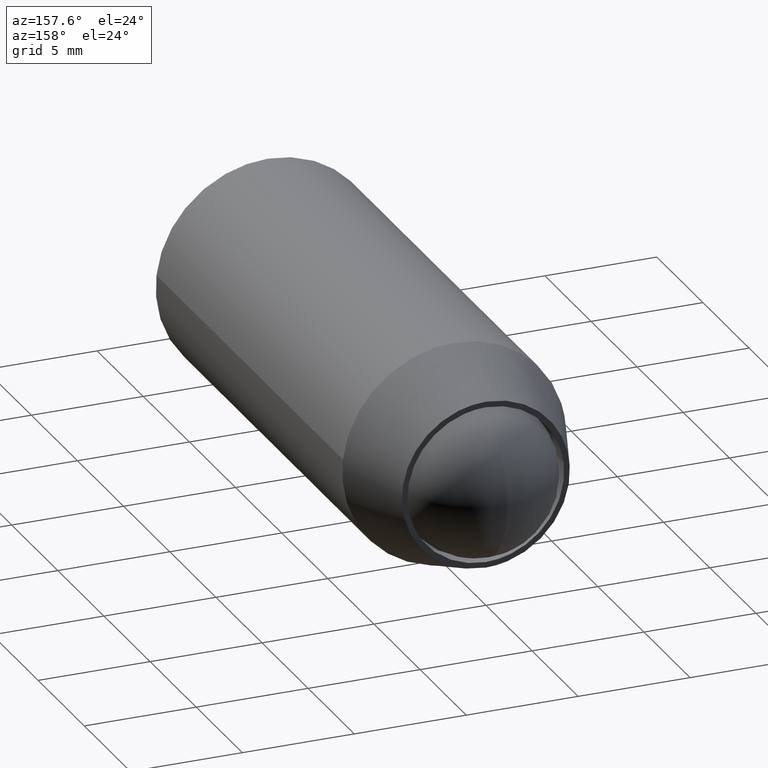
[diagram: clean part render]
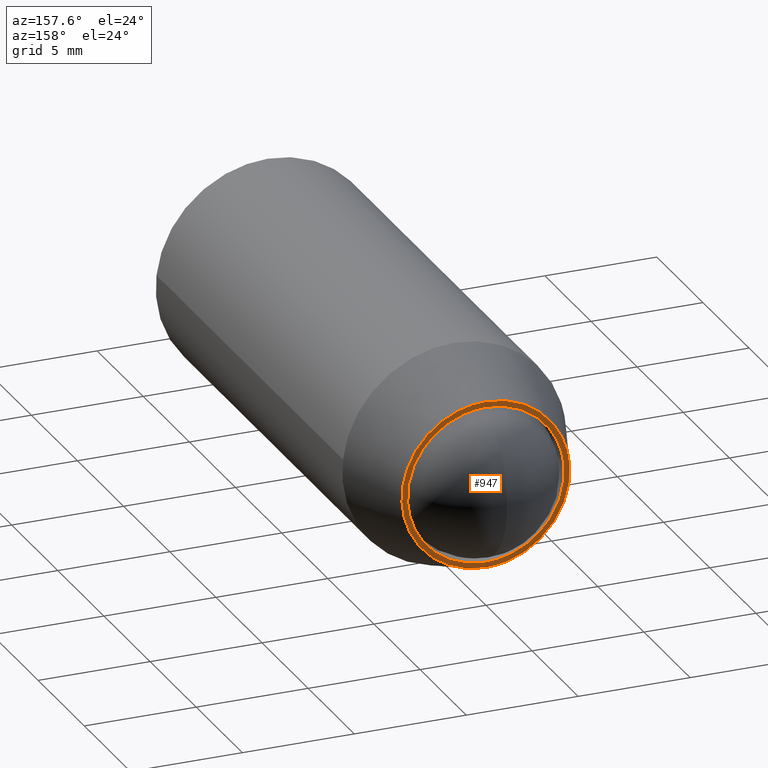
[diagram: same view with one face highlighted and labeled with its STEP entity id]
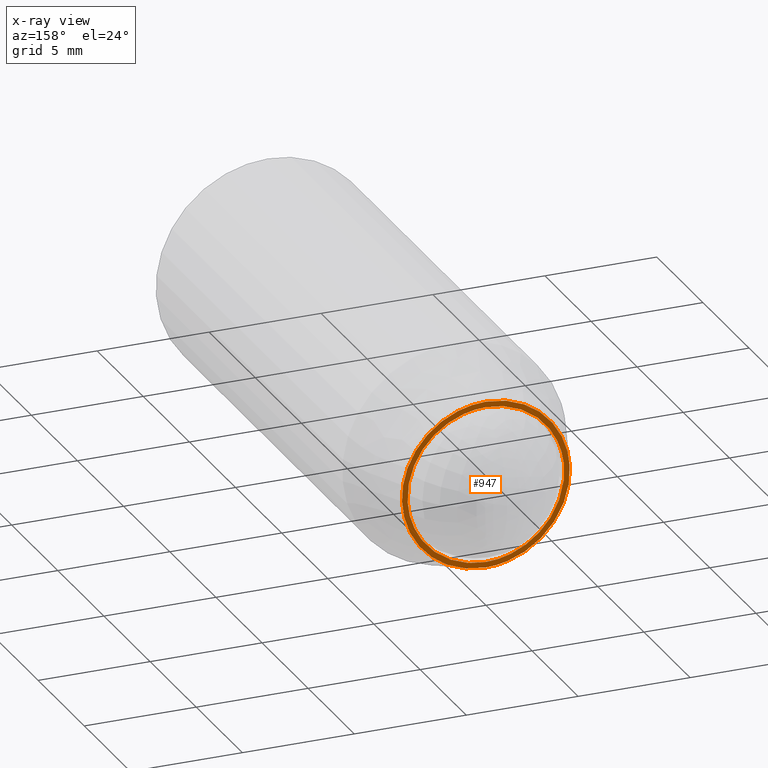
[diagram: x-ray of the same camera — body ghosted, the highlighted face saturated]
A machine part, auxiliary view. The second image highlights one B-rep face of the part: STEP entity #947.
The next image is the same camera in x-ray: the body ghosted, the highlighted face saturated — about 0% of this face is hidden behind the body in this view.
In plain terms, the highlighted face is a freeform B-spline surface patch.
Its self-contained STEP definition (entity closure, byte-faithful):
#100=CARTESIAN_POINT('',(3.493472095733746,-1.110223E-016,-0.213664962746162));
#101=VERTEX_POINT('',#100);
#107=CARTESIAN_POINT('',(0.0,0.0,-3.500000000000000));
#108=VERTEX_POINT('',#107);
#109=CARTESIAN_POINT('',(0.0,0.0,-3.500000000000000));
#110=CARTESIAN_POINT('',(3.292475885072275,0.0,-3.500000000000000));
#111=CARTESIAN_POINT('',(3.493472095733746,-1.110223E-016,-0.213664962746162));
#119=(BOUNDED_CURVE()B_SPLINE_CURVE(2,(#109,#110,#111),.UNSPECIFIED.,.F.,.U.)B_SPLINE_CURVE_WITH_KNOTS((3,3),(0.500000000000000,0.739333205524620),.UNSPECIFIED.)CURVE()GEOMETRIC_REPRESENTATION_ITEM()RATIONAL_B_SPLINE_CURVE((1.0,0.719603708259810,0.976072563074789))REPRESENTATION_ITEM(''));
#120=EDGE_CURVE('',#108,#101,#119,.T.);
#122=CARTESIAN_POINT('',(-3.475533832542125,-1.135771E-016,0.413115696673206));
#123=VERTEX_POINT('',#122);
#124=CARTESIAN_POINT('',(-3.475533832542125,-1.135771E-016,0.413115696673206));
#125=CARTESIAN_POINT('',(-3.500000000000000,0.0,0.207282334666821));
#126=CARTESIAN_POINT('',(-3.500000000000000,0.0,0.0));
#127=CARTESIAN_POINT('',(-3.500000000000000,0.0,-3.500000000000000));
#128=CARTESIAN_POINT('',(0.0,0.0,-3.500000000000000));
#136=(BOUNDED_CURVE()B_SPLINE_CURVE(2,(#124,#125,#126,#127,#128),.UNSPECIFIED.,.F.,.U.)B_SPLINE_CURVE_WITH_KNOTS((3,2,3),(0.229562674082027,0.250000000000000,0.500000000000000),.UNSPECIFIED.)CURVE()GEOMETRIC_REPRESENTATION_ITEM()RATIONAL_B_SPLINE_CURVE((0.956027147306581,0.976056183311781,1.0,0.707106781186547,1.0))REPRESENTATION_ITEM(''));
#137=EDGE_CURVE('',#123,#108,#136,.T.);
#181=CARTESIAN_POINT('',(0.0,0.0,3.500000000000000));
#182=VERTEX_POINT('',#181);
#183=CARTESIAN_POINT('',(0.0,0.0,3.500000000000000));
#184=CARTESIAN_POINT('',(-3.108614555978199,0.0,3.500000000000000));
#185=CARTESIAN_POINT('',(-3.475533832542125,-1.135771E-016,0.413115696673206));
#193=(BOUNDED_CURVE()B_SPLINE_CURVE(2,(#183,#184,#185),.UNSPECIFIED.,.F.,.U.)B_SPLINE_CURVE_WITH_KNOTS((3,3),(0.0,0.229562674082027),.UNSPECIFIED.)CURVE()GEOMETRIC_REPRESENTATION_ITEM()RATIONAL_B_SPLINE_CURVE((1.0,0.731050597874766,0.956027147306581))REPRESENTATION_ITEM(''));
#194=EDGE_CURVE('',#182,#123,#193,.T.);
#196=CARTESIAN_POINT('',(3.493472095733746,-1.110223E-016,-0.213664962746162));
#197=CARTESIAN_POINT('',(3.500000000000000,0.0,-0.106932201826920));
#198=CARTESIAN_POINT('',(3.500000000000000,0.0,0.0));
#199=CARTESIAN_POINT('',(3.500000000000000,0.0,3.500000000000000));
#200=CARTESIAN_POINT('',(0.0,0.0,3.500000000000000));
#208=(BOUNDED_CURVE()B_SPLINE_CURVE(2,(#196,#197,#198,#199,#200),.UNSPECIFIED.,.F.,.U.)B_SPLINE_CURVE_WITH_KNOTS((3,2,3),(0.739333205524620,0.750000000000000,1.0),.UNSPECIFIED.)CURVE()GEOMETRIC_REPRESENTATION_ITEM()RATIONAL_B_SPLINE_CURVE((0.976072563074789,0.987503072926737,1.0,0.707106781186547,1.0))REPRESENTATION_ITEM(''));
#209=EDGE_CURVE('',#101,#182,#208,.T.);
#256=CARTESIAN_POINT('',(-3.041150898637995,-4.158979E-013,-2.194060439394151));
#257=VERTEX_POINT('',#256);
#258=CARTESIAN_POINT('',(0.0,0.0,-3.750000000000001));
#259=VERTEX_POINT('',#258);
#260=CARTESIAN_POINT('',(-3.041150898637995,-4.158979E-013,-2.194060439394150));
#261=CARTESIAN_POINT('',(-1.918606983585663,0.0,-3.750000000000000));
#262=CARTESIAN_POINT('',(0.0,0.0,-3.750000000000001));
#270=(BOUNDED_CURVE()B_SPLINE_CURVE(2,(#260,#261,#262),.UNSPECIFIED.,.F.,.U.)B_SPLINE_CURVE_WITH_KNOTS((3,3),(0.850743050382329,1.0),.UNSPECIFIED.)CURVE()GEOMETRIC_REPRESENTATION_ITEM()RATIONAL_B_SPLINE_CURVE((0.859068214727195,0.825134606384812,1.0))REPRESENTATION_ITEM(''));
#271=EDGE_CURVE('',#257,#259,#270,.T.);
#273=CARTESIAN_POINT('',(0.0,0.0,3.749999999999999));
#274=VERTEX_POINT('',#273);
#275=CARTESIAN_POINT('',(0.0,0.0,-3.750000000000001));
#276=CARTESIAN_POINT('',(3.750000000000000,0.0,-3.750000000000002));
#277=CARTESIAN_POINT('',(3.750000000000000,0.0,-7.898711E-016));
#278=CARTESIAN_POINT('',(3.750000000000000,0.0,3.749999999999999));
#279=CARTESIAN_POINT('',(0.0,0.0,3.749999999999999));
#287=(BOUNDED_CURVE()B_SPLINE_CURVE(2,(#275,#276,#277,#278,#279),.UNSPECIFIED.,.F.,.U.)B_SPLINE_CURVE_WITH_KNOTS((3,2,3),(0.0,0.250000000000000,0.500000000000000),.UNSPECIFIED.)CURVE()GEOMETRIC_REPRESENTATION_ITEM()RATIONAL_B_SPLINE_CURVE((1.0,0.707106781186547,1.0,0.707106781186547,1.0))REPRESENTATION_ITEM(''));
#288=EDGE_CURVE('',#259,#274,#287,.T.);
#290=CARTESIAN_POINT('',(-3.743005494082165,-5.431509E-012,0.228932023285429));
#291=VERTEX_POINT('',#290);
#292=CARTESIAN_POINT('',(0.0,0.0,3.749999999999999));
#293=CARTESIAN_POINT('',(-3.527647750840481,0.0,3.749999999999998));
#294=CARTESIAN_POINT('',(-3.743005494082165,-5.431509E-012,0.228932023285429));
#302=(BOUNDED_CURVE()B_SPLINE_CURVE(2,(#292,#293,#294),.UNSPECIFIED.,.F.,.U.)B_SPLINE_CURVE_WITH_KNOTS((3,3),(0.500000000000000,0.739332962239240),.UNSPECIFIED.)CURVE()GEOMETRIC_REPRESENTATION_ITEM()RATIONAL_B_SPLINE_CURVE((1.0,0.719603993286362,0.976072041667355))REPRESENTATION_ITEM(''));
#303=EDGE_CURVE('',#274,#291,#302,.T.);
#396=CARTESIAN_POINT('',(-3.743005494082165,-5.431509E-012,0.228932023285429));
#397=CARTESIAN_POINT('',(-3.750000000000001,0.0,0.114572862399386));
#398=CARTESIAN_POINT('',(-3.750000000000000,0.0,-7.898711E-016));
#399=CARTESIAN_POINT('',(-3.750000000000000,0.0,-1.211536420048224));
#400=CARTESIAN_POINT('',(-3.041150898637995,-4.158979E-013,-2.194060439394151));
#408=(BOUNDED_CURVE()B_SPLINE_CURVE(2,(#396,#397,#398,#399,#400),.UNSPECIFIED.,.F.,.U.)B_SPLINE_CURVE_WITH_KNOTS((3,2,3),(0.739332962239240,0.750000000000000,0.850743050382329),.UNSPECIFIED.)CURVE()GEOMETRIC_REPRESENTATION_ITEM()RATIONAL_B_SPLINE_CURVE((0.976072041667354,0.987502787900185,1.0,0.881972174801736,0.859068214727195))REPRESENTATION_ITEM(''));
#409=EDGE_CURVE('',#291,#257,#408,.T.);
#930=CARTESIAN_POINT('',(-4.124513886951266,0.0,-4.124624985463545));
#931=CARTESIAN_POINT('',(-4.124513886951266,0.0,4.124625186629221));
#932=CARTESIAN_POINT('',(4.124619901262579,0.0,-4.124624985463545));
#933=CARTESIAN_POINT('',(4.124619901262579,0.0,4.124625186629221));
#934=B_SPLINE_SURFACE_WITH_KNOTS('',1,1,((#930,#932),(#931,#933)),.UNSPECIFIED.,.F.,.F.,.U.,(2,2),(2,2),(0.0,8.249250172092765),(0.0,8.249133788213845),.UNSPECIFIED.);
#935=ORIENTED_EDGE('',*,*,#271,.F.);
#936=ORIENTED_EDGE('',*,*,#409,.F.);
#937=ORIENTED_EDGE('',*,*,#303,.F.);
#938=ORIENTED_EDGE('',*,*,#288,.F.);
#939=EDGE_LOOP('',(#935,#936,#937,#938));
#940=FACE_OUTER_BOUND('',#939,.T.);
#941=ORIENTED_EDGE('',*,*,#120,.T.);
#942=ORIENTED_EDGE('',*,*,#209,.T.);
#943=ORIENTED_EDGE('',*,*,#194,.T.);
#944=ORIENTED_EDGE('',*,*,#137,.T.);
#945=EDGE_LOOP('',(#941,#942,#943,#944));
#946=FACE_BOUND('',#945,.T.);
#947=ADVANCED_FACE('',(#940,#946),#934,.T.);